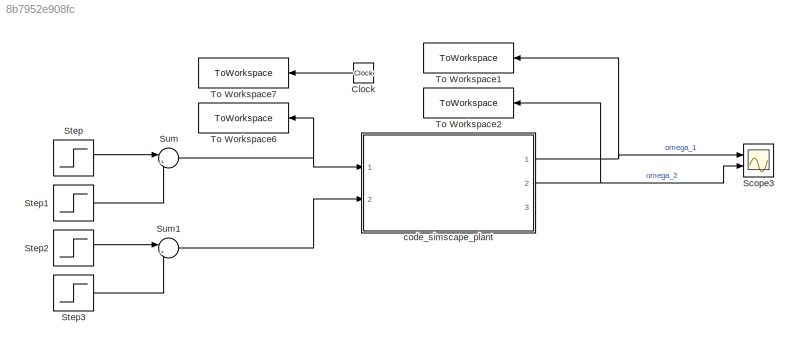
MODEL slx_8b7952e908fc
KIND model
CONFIG AbsTol = auto
CONFIG EnableMultiTasking = off
CONFIG FixedStep = auto
CONFIG MaxStep = auto
CONFIG MinStep = auto
CONFIG RelTol = 1e-3
CONFIG SampleTimeConstraint = Unconstrained
CONFIG Solver = ode45
CONFIG SolverName = ode45
CONFIG StartTime = 0.0
CONFIG StopTime = simlength
BLOCK [Clock] Clock
  NameLocation = top
BLOCK [Scope] Scope3
  Floating = off
  NumInputPorts = 2
  Ports = [2]
  ScopeSpecificationString = Simulink.scopes.TimeScopeBlockCfg('CurrentConfiguration', extmgr.ConfigurationSet(extmgr.Configuration('Core','General UI',true),extmgr.Configuration('Core','Source UI',true),extmgr.Configuration('Sources','WiredSimulink',true,'DataLoggingVariableName','ScopeData1'),extmgr.Configuration('Visuals','Time Domain',true,'SerializedDisplays',{struct('MinYLimReal','-0.23648','MaxYLimReal','2.12831','YLab...<+1447ch>
BLOCK [Step] Step
  SampleTime = 0
  Time = 0.2
BLOCK [Step] Step1
  SampleTime = 0
  Time = 0.25
BLOCK [Step] Step2
  SampleTime = 0
  Time = 0.2+simlength/2
BLOCK [Step] Step3
  SampleTime = 0
  Time = 0.25+simlength/2
BLOCK [Sum] Sum
  Inputs = |+-
  Ports = [2, 1]
BLOCK [Sum] Sum1
  Inputs = |+-
  Ports = [2, 1]
BLOCK [ToWorkspace] To Workspace1
  FixptAsFi = on
  MaxDataPoints = Nc
  NameLocation = top
  Ports = [1]
  SampleTime = Tc
  VariableName = w1
BLOCK [ToWorkspace] To Workspace2
  FixptAsFi = on
  MaxDataPoints = Nc
  NameLocation = top
  Ports = [1]
  SampleTime = Tc
  VariableName = w2
BLOCK [ToWorkspace] To Workspace6
  FixptAsFi = on
  MaxDataPoints = Nc
  NameLocation = top
  Ports = [1]
  SampleTime = Tc
  VariableName = tau_1
BLOCK [ToWorkspace] To Workspace7
  FixptAsFi = on
  MaxDataPoints = Nc
  NameLocation = top
  Ports = [1]
  SampleTime = Tc
  VariableName = t
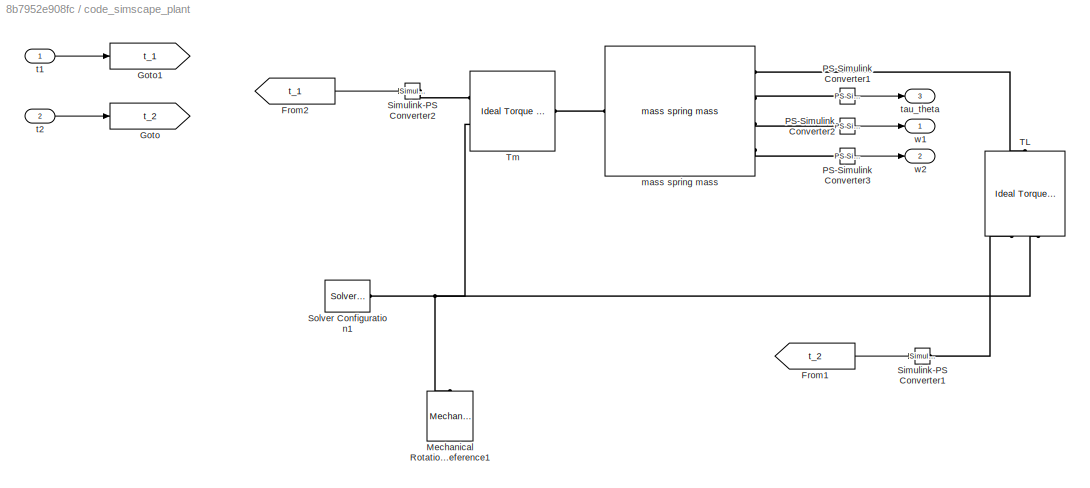
BLOCK [SubSystem] code_simscape_plant 
  Ports = [2, 3]
  RequestExecContextInheritance = off
BLOCK [From] code_simscape_plant /From1
  GotoTag = t_2
BLOCK [From] code_simscape_plant /From2
  GotoTag = t_1
BLOCK [Goto] code_simscape_plant /Goto
  GotoTag = t_2
BLOCK [Goto] code_simscape_plant /Goto1
  GotoTag = t_1
BLOCK [Reference] code_simscape_plant /Mechanical Rotational Reference1  REF=fl_lib/Mechanical/Rotational Elements/Mechanical
Rotational Reference
  NameLocation = right
  Ports = [0, 0, 0, 0, 0, 1]
  SourceBlock = fl_lib/Mechanical/Rotational Elements/Mechanical\nRotational Reference
  SourceProductBaseCode = SS
  SourceType = Mechanical\nRotational Reference
BLOCK [Reference] code_simscape_plant /PS-Simulink Converter1  REF=nesl_utility/PS-Simulink
Converter
  Ports = [0, 1, 0, 0, 0, 1]
  SourceBlock = nesl_utility/PS-Simulink\nConverter
  SourceProductBaseCode = SS
  SourceType = PS-Simulink\nConverter
BLOCK [Reference] code_simscape_plant /PS-Simulink Converter2  REF=nesl_utility/PS-Simulink
Converter
  Ports = [0, 1, 0, 0, 0, 1]
  SourceBlock = nesl_utility/PS-Simulink\nConverter
  SourceProductBaseCode = SS
  SourceType = PS-Simulink\nConverter
BLOCK [Reference] code_simscape_plant /PS-Simulink Converter3  REF=nesl_utility/PS-Simulink
Converter
  NameLocation = top
  Ports = [0, 1, 0, 0, 0, 1]
  SourceBlock = nesl_utility/PS-Simulink\nConverter
  SourceProductBaseCode = SS
  SourceType = PS-Simulink\nConverter
BLOCK [Reference] code_simscape_plant /Simulink-PS Converter1  REF=nesl_utility/Simulink-PS
Converter
  Ports = [1, 0, 0, 0, 0, 0, 1]
  SourceBlock = nesl_utility/Simulink-PS\nConverter
  SourceProductBaseCode = SS
  SourceType = Simulink-PS\nConverter
BLOCK [Reference] code_simscape_plant /Simulink-PS Converter2  REF=nesl_utility/Simulink-PS
Converter
  Ports = [1, 0, 0, 0, 0, 0, 1]
  SourceBlock = nesl_utility/Simulink-PS\nConverter
  SourceProductBaseCode = SS
  SourceType = Simulink-PS\nConverter
BLOCK [Reference] code_simscape_plant /Solver Configuration1  REF=nesl_utility/Solver
Configuration
  Ports = [0, 0, 0, 0, 0, 0, 1]
  SourceBlock = nesl_utility/Solver\nConfiguration
  SourceProductBaseCode = SS
  SourceType = Solver\nConfiguration
BLOCK [Reference] code_simscape_plant /TL  REF=fl_lib/Mechanical/Mechanical Sources/Ideal Torque Source
  NameLocation = right
  Ports = [0, 0, 0, 0, 0, 1, 2]
  SourceBlock = fl_lib/Mechanical/Mechanical Sources/Ideal Torque Source
  SourceProductBaseCode = SS
  SourceType = Ideal Torque Source
BLOCK [Reference] code_simscape_plant /Tm   REF=fl_lib/Mechanical/Mechanical Sources/Ideal Torque Source
  Ports = [0, 0, 0, 0, 0, 1, 2]
  SourceBlock = fl_lib/Mechanical/Mechanical Sources/Ideal Torque Source
  SourceProductBaseCode = SS
  SourceType = Ideal Torque Source
BLOCK [Reference] code_simscape_plant /mass spring mass  REF=mass_spring_mass_lib/mass spring mass
  Ports = [0, 0, 0, 0, 0, 1, 4]
  SourceBlock = mass_spring_mass_lib/mass spring mass
  SourceType = mass spring mass
BLOCK [Inport] code_simscape_plant /t1
BLOCK [Inport] code_simscape_plant /t2
  Port = 2
BLOCK [Outport] code_simscape_plant /tau_theta
  Port = 3
BLOCK [Outport] code_simscape_plant /w1
BLOCK [Outport] code_simscape_plant /w2
  Port = 2
LINE Clock:1 -> To Workspace7:1
LINE Step1:1 -> Sum:2
LINE Step2:1 -> Sum1:1
LINE Step3:1 -> Sum1:2
LINE Step:1 -> Sum:1
LINE Sum1:1 -> code_simscape_plant :2
NET Sum:1 -> To Workspace6:1, code_simscape_plant :1
LINE code_simscape_plant /From1:1 -> code_simscape_plant /Simulink-PS Converter1:1
LINE code_simscape_plant /From2:1 -> code_simscape_plant /Simulink-PS Converter2:1
LINE code_simscape_plant /PS-Simulink Converter1:1 -> code_simscape_plant /tau_theta:1
LINE code_simscape_plant /PS-Simulink Converter2:1 -> code_simscape_plant /w1:1
LINE code_simscape_plant /PS-Simulink Converter3:1 -> code_simscape_plant /w2:1
LINE code_simscape_plant /t1:1 -> code_simscape_plant /Goto1:1
LINE code_simscape_plant /t2:1 -> code_simscape_plant /Goto:1
NET code_simscape_plant :1 -> Scope3:1, To Workspace1:1
NET code_simscape_plant :2 -> Scope3:2, To Workspace2:1
PNET net1: code_simscape_plant /Mechanical Rotational Reference1:LConn1 -- code_simscape_plant /Solver Configuration1:RConn1 -- code_simscape_plant /TL:RConn2 -- code_simscape_plant /Tm :RConn2
PLINE code_simscape_plant /PS-Simulink Converter1:LConn1 -- code_simscape_plant /mass spring mass:RConn2
PLINE code_simscape_plant /PS-Simulink Converter2:LConn1 -- code_simscape_plant /mass spring mass:RConn3
PLINE code_simscape_plant /PS-Simulink Converter3:LConn1 -- code_simscape_plant /mass spring mass:RConn4
PLINE code_simscape_plant /Simulink-PS Converter1:RConn1 -- code_simscape_plant /TL:RConn1
PLINE code_simscape_plant /Simulink-PS Converter2:RConn1 -- code_simscape_plant /Tm :RConn1
PLINE code_simscape_plant /TL:LConn1 -- code_simscape_plant /mass spring mass:RConn1
PLINE code_simscape_plant /Tm :LConn1 -- code_simscape_plant /mass spring mass:LConn1
note: NET lines group one-source signal fan-out (src -> all destinations, sorted); 1:1 wires keep LINE; PNET lines group multi-terminal physical nets as a canonical sorted terminal list (undirected conserving connections); 2-terminal nets keep the pairwise PLINE form
